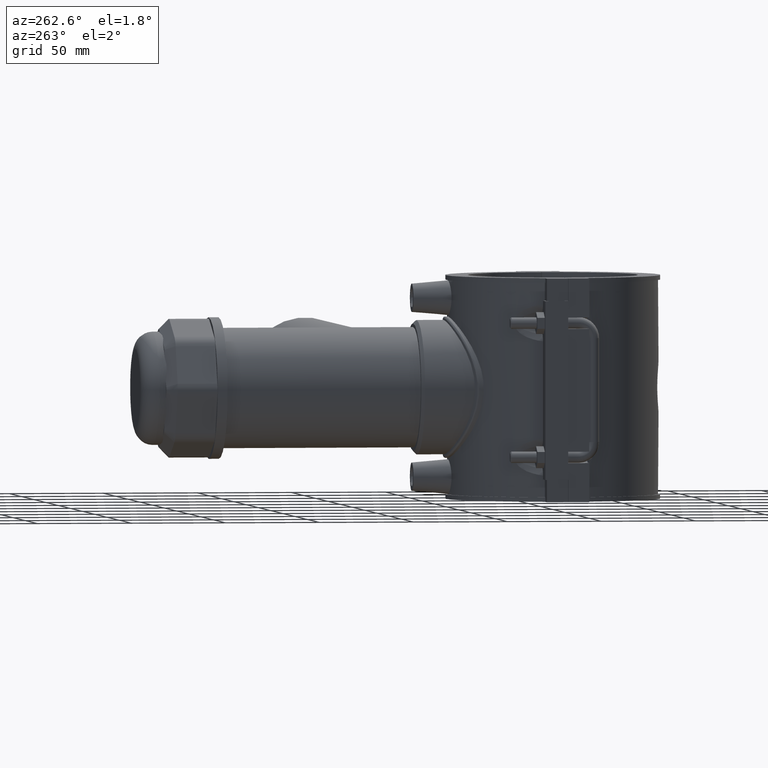
[diagram: clean part render]
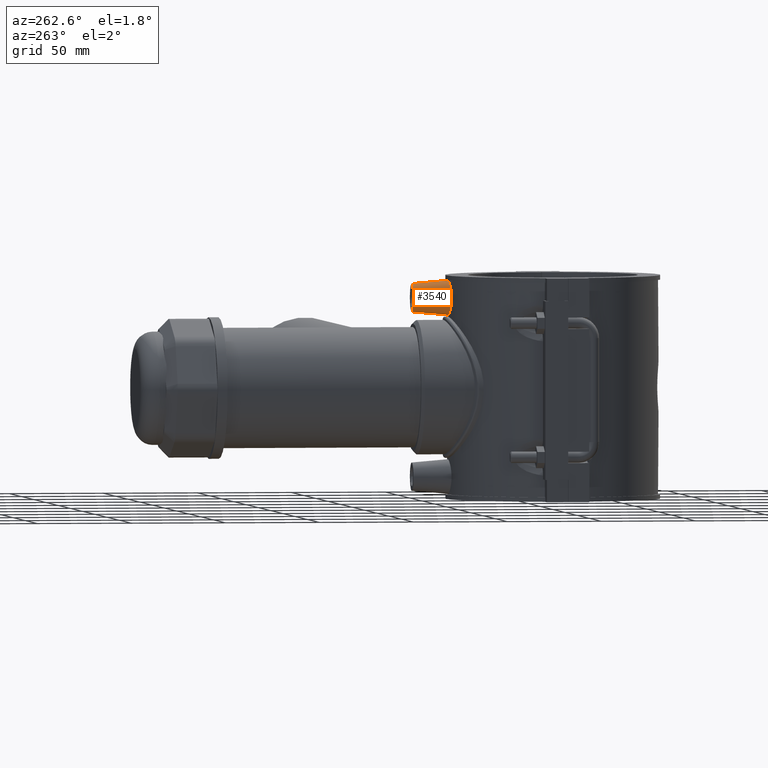
[diagram: same view with one face highlighted and labeled with its STEP entity id]
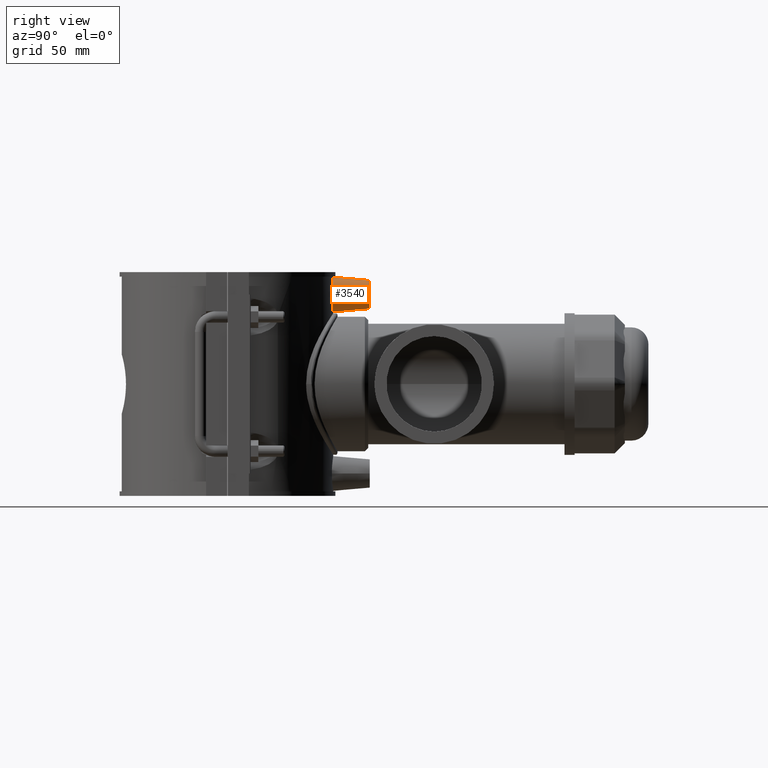
[diagram: same view with one face highlighted and labeled with its STEP entity id]
A machine part, auxiliary view. The second image highlights one B-rep face of the part: STEP entity #3540.
A second angle (right view) of the same face is appended — the face is thin or edge-on in the first view.
In plain terms, the highlighted conical surface has half-angle 5 deg.
Its self-contained STEP definition (entity closure, byte-faithful):
#38=CONICAL_SURFACE('',#3830,7.5,5.);
#679=FACE_BOUND('',#1182,.T.);
#722=B_SPLINE_CURVE_WITH_KNOTS('',3,(#6099,#6100,#6101,#6102,#6103,#6104,
#6105,#6106,#6107,#6108,#6109,#6110,#6111,#6112,#6113,#6114,#6115,#6116,
#6117,#6118,#6119,#6120,#6121,#6122,#6123,#6124,#6125,#6126,#6127,#6128,
#6129,#6130,#6131,#6132),.UNSPECIFIED.,.T.,.F.,(4,2,2,2,2,2,2,2,2,2,2,2,
2,2,2,2,4),(0.,0.348056546561925,0.69611309312385,1.04356737342671,1.39102165372956,
1.73847593403242,2.08593021433528,2.4339867608972,2.78204330745913,3.13009985402105,
3.47815640058298,3.82561068088584,4.17306496118869,4.52051924149155,4.86797352179441,
5.21603006835633,5.56408661491826),.UNSPECIFIED.);
#940=FACE_OUTER_BOUND('',#1181,.T.);
#1181=EDGE_LOOP('',(#2807));
#1182=EDGE_LOOP('',(#2808));
#1386=CIRCLE('',#3831,7.5);
#1575=VERTEX_POINT('',#6098);
#1667=VERTEX_POINT('',#6786);
#1963=EDGE_CURVE('',#1575,#1575,#722,.T.);
#2090=EDGE_CURVE('',#1667,#1667,#1386,.T.);
#2807=ORIENTED_EDGE('',*,*,#2090,.F.);
#2808=ORIENTED_EDGE('',*,*,#1963,.F.);
#3540=ADVANCED_FACE('',(#940,#679),#38,.T.);
#3830=AXIS2_PLACEMENT_3D('',#6785,#4555,#4556);
#3831=AXIS2_PLACEMENT_3D('',#6787,#4557,#4558);
#4555=DIRECTION('center_axis',(0.,-1.,0.));
#4556=DIRECTION('ref_axis',(1.,0.,0.));
#4557=DIRECTION('center_axis',(0.,1.,0.));
#4558=DIRECTION('ref_axis',(1.,0.,0.));
#6098=CARTESIAN_POINT('',(9.24728629540475,55.0284262556255,47.2));
#6099=CARTESIAN_POINT('Ctrl Pts',(-9.24728629540475,55.0284262556255,47.2));
#6100=CARTESIAN_POINT('Ctrl Pts',(-9.24728629540475,55.0284262556255,46.0398115114603));
#6101=CARTESIAN_POINT('Ctrl Pts',(-9.01214330687963,55.0695247712232,44.8048425692873));
#6102=CARTESIAN_POINT('Ctrl Pts',(-8.06162809036161,55.2166771321644,42.5386892230938));
#6103=CARTESIAN_POINT('Ctrl Pts',(-7.34642811830192,55.320480575323,41.5072870056913));
#6104=CARTESIAN_POINT('Ctrl Pts',(-5.70321706832009,55.5139308795857,39.8833192701881));
#6105=CARTESIAN_POINT('Ctrl Pts',(-4.66552947400089,55.616265751875,39.1809887441537));
#6106=CARTESIAN_POINT('Ctrl Pts',(-2.3930894121168,55.7602842908542,38.2493992541058));
#6107=CARTESIAN_POINT('Ctrl Pts',(-1.15818093434286,55.8,38.0202176603023));
#6108=CARTESIAN_POINT('Ctrl Pts',(1.15818093434286,55.8,38.0202176603023));
#6109=CARTESIAN_POINT('Ctrl Pts',(2.3930894121168,55.7602842908542,38.2493992541058));
#6110=CARTESIAN_POINT('Ctrl Pts',(4.66552947400089,55.616265751875,39.1809887441537));
#6111=CARTESIAN_POINT('Ctrl Pts',(5.70321706832009,55.5139308795857,39.8833192701881));
#6112=CARTESIAN_POINT('Ctrl Pts',(7.34642811830192,55.320480575323,41.5072870056913));
#6113=CARTESIAN_POINT('Ctrl Pts',(8.06162809036161,55.2166771321644,42.5386892230938));
#6114=CARTESIAN_POINT('Ctrl Pts',(9.01214330687963,55.0695247712232,44.8048425692873));
#6115=CARTESIAN_POINT('Ctrl Pts',(9.24728629540475,55.0284262556255,46.0398115114603));
#6116=CARTESIAN_POINT('Ctrl Pts',(9.24728629540475,55.0284262556255,48.3601884885398));
#6117=CARTESIAN_POINT('Ctrl Pts',(9.01214330687963,55.0695247712232,49.5951574307127));
#6118=CARTESIAN_POINT('Ctrl Pts',(8.06162809036161,55.2166771321644,51.8613107769063));
#6119=CARTESIAN_POINT('Ctrl Pts',(7.34642811830192,55.320480575323,52.8927129943087));
#6120=CARTESIAN_POINT('Ctrl Pts',(5.70321706832009,55.5139308795857,54.5166807298119));
#6121=CARTESIAN_POINT('Ctrl Pts',(4.66552947400089,55.616265751875,55.2190112558464));
#6122=CARTESIAN_POINT('Ctrl Pts',(2.39308941211679,55.7602842908542,56.1506007458942));
#6123=CARTESIAN_POINT('Ctrl Pts',(1.15818093434286,55.8,56.3797823396978));
#6124=CARTESIAN_POINT('Ctrl Pts',(-1.15818093434285,55.8,56.3797823396978));
#6125=CARTESIAN_POINT('Ctrl Pts',(-2.39308941211679,55.7602842908542,56.1506007458942));
#6126=CARTESIAN_POINT('Ctrl Pts',(-4.66552947400089,55.6162657518749,55.2190112558464));
#6127=CARTESIAN_POINT('Ctrl Pts',(-5.70321706832009,55.5139308795857,54.5166807298119));
#6128=CARTESIAN_POINT('Ctrl Pts',(-7.34642811830192,55.320480575323,52.8927129943087));
#6129=CARTESIAN_POINT('Ctrl Pts',(-8.06162809036161,55.2166771321644,51.8613107769063));
#6130=CARTESIAN_POINT('Ctrl Pts',(-9.01214330687963,55.0695247712232,49.5951574307127));
#6131=CARTESIAN_POINT('Ctrl Pts',(-9.24728629540475,55.0284262556255,48.3601884885398));
#6132=CARTESIAN_POINT('Ctrl Pts',(-9.24728629540475,55.0284262556255,47.2));
#6785=CARTESIAN_POINT('Origin',(0.,75.,47.2));
#6786=CARTESIAN_POINT('',(-7.5,75.,47.2));
#6787=CARTESIAN_POINT('Origin',(0.,75.,47.2));